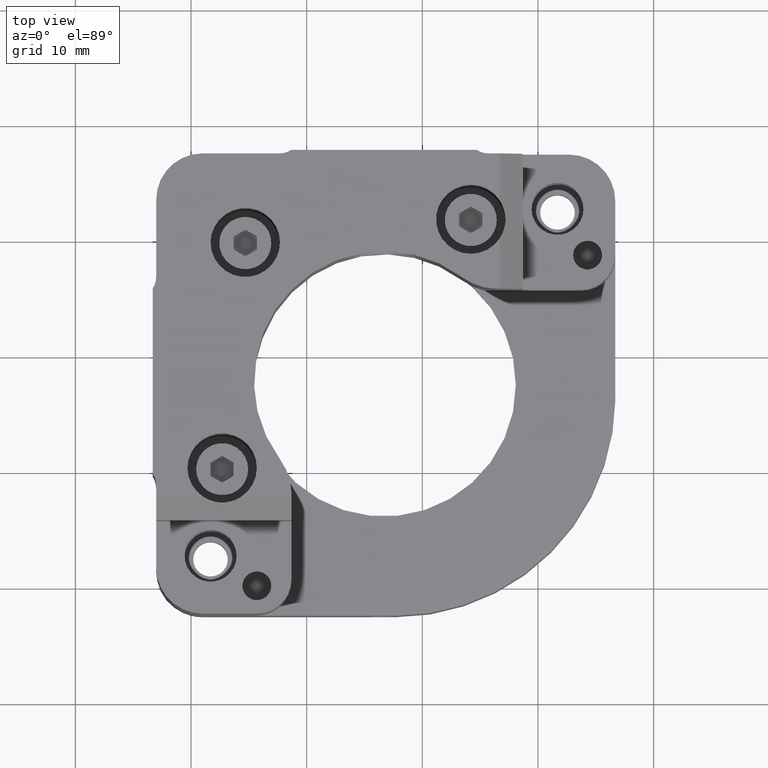
[diagram: clean part render]
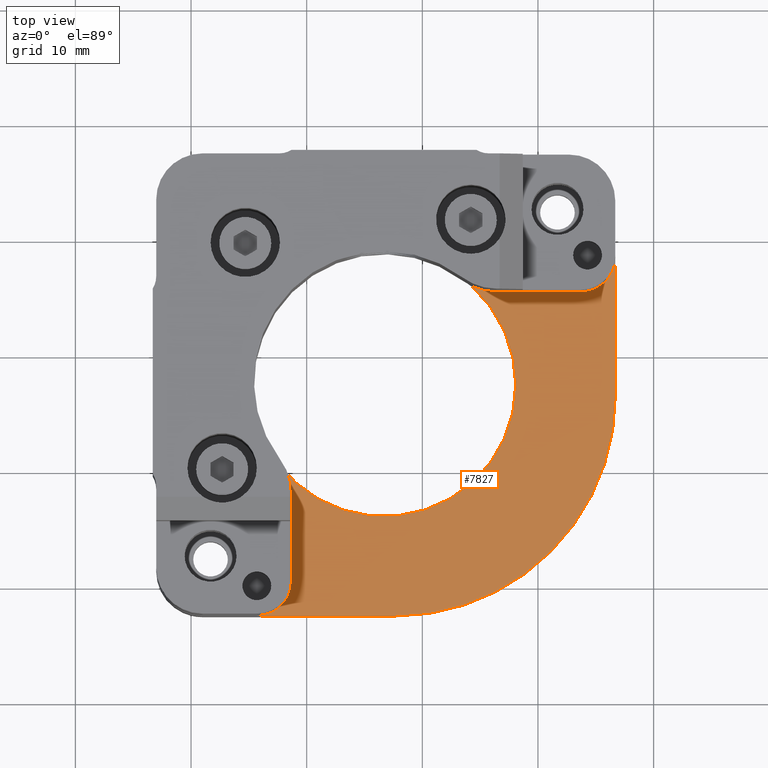
[diagram: same view with one face highlighted and labeled with its STEP entity id]
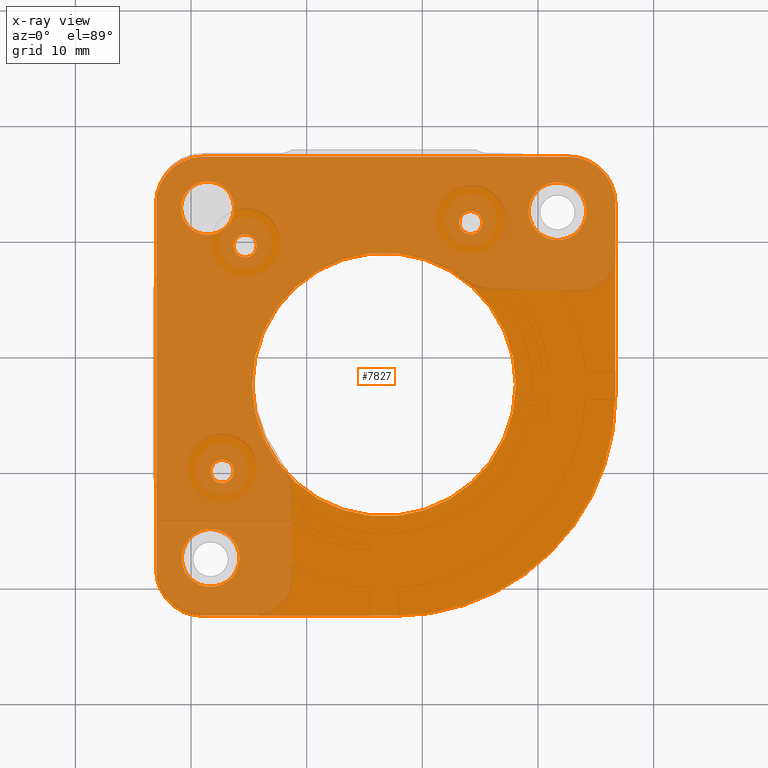
[diagram: x-ray of the same camera — body ghosted, the highlighted face saturated]
A machine part, top view. The second image highlights one B-rep face of the part: STEP entity #7827.
The next image is the same camera in x-ray: the body ghosted, the highlighted face saturated — about 59% of this face is hidden behind the body in this view.
In plain terms, the highlighted planar face has unit normal (0, 0, -1).
Its self-contained STEP definition (entity closure, byte-faithful):
#1 = DIRECTION ( 'NONE',  ( -0.000000000000000000, -1.000000000000000000, -0.000000000000000000 ) ) ;
#38 = CARTESIAN_POINT ( 'NONE',  ( -19.01367805534648170, -18.51830461373927861, 35.25006403882015604 ) ) ;
#65 = ORIENTED_EDGE ( 'NONE', *, *, #3721, .F. ) ;
#165 = CARTESIAN_POINT ( 'NONE',  ( -19.01367805534648170, 13.18169538626072068, 35.25006403882015604 ) ) ;
#171 = CARTESIAN_POINT ( 'NONE',  ( -3.313678055346389595, -2.518304613739277276, 35.25006403882015604 ) ) ;
#197 = CIRCLE ( 'NONE', #1766, 1.000000000000000000 ) ;
#249 = DIRECTION ( 'NONE',  ( -0.000000000000000000, -0.000000000000000000, -1.000000000000000000 ) ) ;
#341 = CARTESIAN_POINT ( 'NONE',  ( -18.57789158827018383, 12.74590891918432334, 35.25006403880151851 ) ) ;
#360 = DIRECTION ( 'NONE',  ( 0.000000000000000000, 0.000000000000000000, -1.000000000000000000 ) ) ;
#404 = CIRCLE ( 'NONE', #3532, 1.000000000000000888 ) ;
#474 = CIRCLE ( 'NONE', #1518, 4.000000000000000000 ) ;
#477 = VERTEX_POINT ( 'NONE', #5460 ) ;
#495 = CARTESIAN_POINT ( 'NONE',  ( -14.31367799644748651, 9.481695327361622461, 35.25006403882015604 ) ) ;
#532 = DIRECTION ( 'NONE',  ( 1.000000000000000000, 0.000000000000000000, 0.000000000000000000 ) ) ;
#573 = LINE ( 'NONE', #3058, #4356 ) ;
#708 = CIRCLE ( 'NONE', #6971, 0.9999999999999991118 ) ;
#709 = CARTESIAN_POINT ( 'NONE',  ( -19.01367805534648170, -22.51830461373927861, 35.25006403882015604 ) ) ;
#717 = AXIS2_PLACEMENT_3D ( 'NONE', #171, #3962, #5054 ) ;
#777 = AXIS2_PLACEMENT_3D ( 'NONE', #4754, #7249, #4347 ) ;
#862 = ORIENTED_EDGE ( 'NONE', *, *, #2768, .F. ) ;
#988 = EDGE_CURVE ( 'NONE', #477, #477, #197, .T. ) ;
#1004 = VERTEX_POINT ( 'NONE', #495 ) ;
#1094 = DIRECTION ( 'NONE',  ( 0.000000000000000000, 0.000000000000000000, 1.000000000000000000 ) ) ;
#1141 = CIRCLE ( 'NONE', #5710, 4.000000000000000000 ) ;
#1227 = CARTESIAN_POINT ( 'NONE',  ( -15.31367799644748651, 9.481695327361622461, 35.25006403882015604 ) ) ;
#1272 = LINE ( 'NONE', #7397, #4088 ) ;
#1343 = DIRECTION ( 'NONE',  ( 1.000000000000000000, 0.000000000000000000, 0.000000000000000000 ) ) ;
#1420 = DIRECTION ( 'NONE',  ( 1.000000000000000000, 0.000000000000000000, 0.000000000000000000 ) ) ;
#1467 = ORIENTED_EDGE ( 'NONE', *, *, #988, .F. ) ;
#1518 = AXIS2_PLACEMENT_3D ( 'NONE', #165, #5652, #5086 ) ;
#1547 = FACE_BOUND ( 'NONE', #5972, .T. ) ;
#1736 = VERTEX_POINT ( 'NONE', #7348 ) ;
#1744 = AXIS2_PLACEMENT_3D ( 'NONE', #7678, #5834, #1343 ) ;
#1766 = AXIS2_PLACEMENT_3D ( 'NONE', #4576, #5028, #1420 ) ;
#1823 = EDGE_CURVE ( 'NONE', #2560, #2560, #404, .T. ) ;
#1830 = ORIENTED_EDGE ( 'NONE', *, *, #7162, .F. ) ;
#1880 = DIRECTION ( 'NONE',  ( 0.000000000000000000, 0.000000000000000000, 1.000000000000000000 ) ) ;
#1894 = CIRCLE ( 'NONE', #717, 11.40000000000000036 ) ;
#1986 = CARTESIAN_POINT ( 'NONE',  ( -23.01367805534648880, 13.18169538626072068, 35.25006403882015604 ) ) ;
#1989 = VERTEX_POINT ( 'NONE', #5666 ) ;
#2095 = VERTEX_POINT ( 'NONE', #7136 ) ;
#2126 = CIRCLE ( 'NONE', #1744, 2.499999999999998668 ) ;
#2133 = CARTESIAN_POINT ( 'NONE',  ( 14.18632200355251527, 12.48169532736162246, 35.25006403882015604 ) ) ;
#2140 = ORIENTED_EDGE ( 'NONE', *, *, #6218, .F. ) ;
#2190 = FACE_BOUND ( 'NONE', #6324, .T. ) ;
#2216 = CARTESIAN_POINT ( 'NONE',  ( 12.68632194465361529, 17.18169538626077397, 35.25006403882015604 ) ) ;
#2229 = DIRECTION ( 'NONE',  ( -1.000000000000000000, 0.000000000000000000, -0.000000000000000000 ) ) ;
#2268 = ORIENTED_EDGE ( 'NONE', *, *, #5549, .F. ) ;
#2311 = ORIENTED_EDGE ( 'NONE', *, *, #6592, .F. ) ;
#2401 = CIRCLE ( 'NONE', #4366, 19.00000000000000000 ) ;
#2432 = EDGE_LOOP ( 'NONE', ( #2311 ) ) ;
#2443 = AXIS2_PLACEMENT_3D ( 'NONE', #5529, #3741, #6760 ) ;
#2514 = VERTEX_POINT ( 'NONE', #7042 ) ;
#2560 = VERTEX_POINT ( 'NONE', #4485 ) ;
#2642 = PLANE ( 'NONE',  #5289 ) ;
#2757 = FACE_BOUND ( 'NONE', #4929, .T. ) ;
#2767 = DIRECTION ( 'NONE',  ( 1.000000000000000000, 0.000000000000000000, 0.000000000000000000 ) ) ;
#2768 = EDGE_CURVE ( 'NONE', #6235, #3158, #4415, .T. ) ;
#2777 = CARTESIAN_POINT ( 'NONE',  ( 16.68632194465361707, 13.18169538626072068, 35.25006403882015604 ) ) ;
#2782 = CARTESIAN_POINT ( 'NONE',  ( -23.01367805534648880, -3.518304613739277276, 35.25006403882015604 ) ) ;
#3058 = CARTESIAN_POINT ( 'NONE',  ( -2.313678055346389151, 17.18169538626082371, 35.25006403882015604 ) ) ;
#3067 = VERTEX_POINT ( 'NONE', #5568 ) ;
#3158 = VERTEX_POINT ( 'NONE', #2777 ) ;
#3255 = DIRECTION ( 'NONE',  ( -0.000000000000000000, -0.000000000000000000, -1.000000000000000000 ) ) ;
#3258 = EDGE_CURVE ( 'NONE', #1989, #1989, #3460, .T. ) ;
#3369 = ORIENTED_EDGE ( 'NONE', *, *, #5621, .F. ) ;
#3422 = CARTESIAN_POINT ( 'NONE',  ( -2.313678055346389151, -22.51830461373927861, 35.25006403882015604 ) ) ;
#3460 = CIRCLE ( 'NONE', #6460, 2.299999999940617101 ) ;
#3509 = VERTEX_POINT ( 'NONE', #709 ) ;
#3511 = CIRCLE ( 'NONE', #777, 2.500000000000000444 ) ;
#3532 = AXIS2_PLACEMENT_3D ( 'NONE', #6166, #1094, #4234 ) ;
#3557 = DIRECTION ( 'NONE',  ( -0.000000000000000000, 0.000000000000000000, 1.000000000000000000 ) ) ;
#3601 = ORIENTED_EDGE ( 'NONE', *, *, #4969, .F. ) ;
#3675 = EDGE_LOOP ( 'NONE', ( #3978 ) ) ;
#3683 = VERTEX_POINT ( 'NONE', #4469 ) ;
#3718 = VECTOR ( 'NONE', #6444, 1000.000000000000000 ) ;
#3721 = EDGE_CURVE ( 'NONE', #1736, #3731, #2401, .T. ) ;
#3731 = VERTEX_POINT ( 'NONE', #4125 ) ;
#3741 = DIRECTION ( 'NONE',  ( -0.000000000000000000, -0.000000000000000000, -1.000000000000000000 ) ) ;
#3794 = ORIENTED_EDGE ( 'NONE', *, *, #7632, .F. ) ;
#3962 = DIRECTION ( 'NONE',  ( 0.000000000000000000, 0.000000000000000000, 1.000000000000000000 ) ) ;
#3978 = ORIENTED_EDGE ( 'NONE', *, *, #5749, .F. ) ;
#4051 = EDGE_CURVE ( 'NONE', #3731, #3509, #5380, .T. ) ;
#4088 = VECTOR ( 'NONE', #1, 1000.000000000000000 ) ;
#4091 = DIRECTION ( 'NONE',  ( 1.000000000000000000, 0.000000000000000000, 0.000000000000000000 ) ) ;
#4125 = CARTESIAN_POINT ( 'NONE',  ( -2.313678055346387819, -22.51830461373927861, 35.25006403882015604 ) ) ;
#4128 = EDGE_LOOP ( 'NONE', ( #862, #3369, #1830, #2140, #3794, #7394, #65, #2268 ) ) ;
#4147 = EDGE_LOOP ( 'NONE', ( #7867 ) ) ;
#4181 = LINE ( 'NONE', #2782, #7875 ) ;
#4234 = DIRECTION ( 'NONE',  ( 1.000000000000000000, 0.000000000000000000, 0.000000000000000000 ) ) ;
#4290 = DIRECTION ( 'NONE',  ( 1.000000000000000000, -0.000000000000000000, 0.000000000000000000 ) ) ;
#4347 = DIRECTION ( 'NONE',  ( 1.000000000000000000, 0.000000000000000000, 0.000000000000000000 ) ) ;
#4356 = VECTOR ( 'NONE', #4290, 1000.000000000000000 ) ;
#4366 = AXIS2_PLACEMENT_3D ( 'NONE', #7883, #249, #2767 ) ;
#4415 = CIRCLE ( 'NONE', #2443, 4.000000000000001776 ) ;
#4469 = CARTESIAN_POINT ( 'NONE',  ( 8.086321944653610316, -2.518304613739277276, 35.25006403882015604 ) ) ;
#4485 = CARTESIAN_POINT ( 'NONE',  ( -16.31367799644748473, -10.01830467263837754, 35.25006403882015604 ) ) ;
#4576 = CARTESIAN_POINT ( 'NONE',  ( 4.186322003552704452, 11.48169532736162246, 35.25006403882015604 ) ) ;
#4590 = VERTEX_POINT ( 'NONE', #1986 ) ;
#4653 = FACE_BOUND ( 'NONE', #4147, .T. ) ;
#4696 = FACE_BOUND ( 'NONE', #3675, .T. ) ;
#4754 = CARTESIAN_POINT ( 'NONE',  ( 11.68632200355251527, 12.48169532736162246, 35.25006403882015604 ) ) ;
#4929 = EDGE_LOOP ( 'NONE', ( #1467 ) ) ;
#4950 = DIRECTION ( 'NONE',  ( 1.000000000000000000, 0.000000000000000000, 0.000000000000000000 ) ) ;
#4969 = EDGE_CURVE ( 'NONE', #8018, #8018, #3511, .T. ) ;
#5028 = DIRECTION ( 'NONE',  ( 0.000000000000000000, 0.000000000000000000, 1.000000000000000000 ) ) ;
#5054 = DIRECTION ( 'NONE',  ( 1.000000000000000000, 0.000000000000000000, 0.000000000000000000 ) ) ;
#5086 = DIRECTION ( 'NONE',  ( 1.000000000000000000, 0.000000000000000000, 0.000000000000000000 ) ) ;
#5289 = AXIS2_PLACEMENT_3D ( 'NONE', #7834, #360, #2229 ) ;
#5380 = LINE ( 'NONE', #3422, #3718 ) ;
#5460 = CARTESIAN_POINT ( 'NONE',  ( 5.186322003552704452, 11.48169532736162246, 35.25006403882015604 ) ) ;
#5508 = EDGE_CURVE ( 'NONE', #1004, #1004, #708, .T. ) ;
#5529 = CARTESIAN_POINT ( 'NONE',  ( 12.68632194465361529, 13.18169538626072068, 35.25006403882015604 ) ) ;
#5549 = EDGE_CURVE ( 'NONE', #3158, #1736, #1272, .T. ) ;
#5568 = CARTESIAN_POINT ( 'NONE',  ( -15.81367799644748828, -17.51830467263837576, 35.25006403882015604 ) ) ;
#5621 = EDGE_CURVE ( 'NONE', #2514, #6235, #573, .T. ) ;
#5651 = ORIENTED_EDGE ( 'NONE', *, *, #5508, .F. ) ;
#5652 = DIRECTION ( 'NONE',  ( -0.000000000000000000, -0.000000000000000000, -1.000000000000000000 ) ) ;
#5666 = CARTESIAN_POINT ( 'NONE',  ( -16.27789158832956673, 12.74590891918432334, 35.25006403880151851 ) ) ;
#5710 = AXIS2_PLACEMENT_3D ( 'NONE', #38, #3255, #4950 ) ;
#5749 = EDGE_CURVE ( 'NONE', #3067, #3067, #2126, .T. ) ;
#5834 = DIRECTION ( 'NONE',  ( 0.000000000000000000, 0.000000000000000000, 1.000000000000000000 ) ) ;
#5939 = EDGE_LOOP ( 'NONE', ( #6922 ) ) ;
#5972 = EDGE_LOOP ( 'NONE', ( #3601 ) ) ;
#6166 = CARTESIAN_POINT ( 'NONE',  ( -17.31367799644748828, -10.01830467263837754, 35.25006403882015604 ) ) ;
#6218 = EDGE_CURVE ( 'NONE', #2095, #4590, #4181, .T. ) ;
#6235 = VERTEX_POINT ( 'NONE', #2216 ) ;
#6324 = EDGE_LOOP ( 'NONE', ( #5651 ) ) ;
#6444 = DIRECTION ( 'NONE',  ( -1.000000000000000000, 0.000000000000000000, -0.000000000000000000 ) ) ;
#6460 = AXIS2_PLACEMENT_3D ( 'NONE', #341, #3557, #4091 ) ;
#6592 = EDGE_CURVE ( 'NONE', #3683, #3683, #1894, .T. ) ;
#6760 = DIRECTION ( 'NONE',  ( 1.000000000000000000, 0.000000000000000000, 0.000000000000000000 ) ) ;
#6922 = ORIENTED_EDGE ( 'NONE', *, *, #3258, .F. ) ;
#6971 = AXIS2_PLACEMENT_3D ( 'NONE', #1227, #1880, #532 ) ;
#7042 = CARTESIAN_POINT ( 'NONE',  ( -19.01367805534648170, 17.18169538626082371, 35.25006403882015604 ) ) ;
#7136 = CARTESIAN_POINT ( 'NONE',  ( -23.01367805534648880, -18.51830461373927861, 35.25006403882015604 ) ) ;
#7145 = FACE_OUTER_BOUND ( 'NONE', #4128, .T. ) ;
#7162 = EDGE_CURVE ( 'NONE', #4590, #2514, #474, .T. ) ;
#7184 = FACE_BOUND ( 'NONE', #5939, .T. ) ;
#7209 = DIRECTION ( 'NONE',  ( 0.000000000000000000, 1.000000000000000000, 0.000000000000000000 ) ) ;
#7249 = DIRECTION ( 'NONE',  ( 0.000000000000000000, 0.000000000000000000, 1.000000000000000000 ) ) ;
#7348 = CARTESIAN_POINT ( 'NONE',  ( 16.68632194465361707, -3.518304613739277720, 35.25006403882015604 ) ) ;
#7394 = ORIENTED_EDGE ( 'NONE', *, *, #4051, .F. ) ;
#7397 = CARTESIAN_POINT ( 'NONE',  ( 16.68632194465361707, -3.518304613739277276, 35.25006403882015604 ) ) ;
#7632 = EDGE_CURVE ( 'NONE', #3509, #2095, #1141, .T. ) ;
#7678 = CARTESIAN_POINT ( 'NONE',  ( -18.31367799644748828, -17.51830467263837576, 35.25006403882015604 ) ) ;
#7751 = FACE_BOUND ( 'NONE', #2432, .T. ) ;
#7827 = ADVANCED_FACE ( 'NONE', ( #2757, #7751, #2190, #4653, #7145, #1547, #4696, #7184 ), #2642, .F. ) ;
#7834 = CARTESIAN_POINT ( 'NONE',  ( -2.313678055346389151, -3.518304613739277276, 35.25006403882015604 ) ) ;
#7867 = ORIENTED_EDGE ( 'NONE', *, *, #1823, .F. ) ;
#7875 = VECTOR ( 'NONE', #7209, 1000.000000000000000 ) ;
#7883 = CARTESIAN_POINT ( 'NONE',  ( -2.313678055346389151, -3.518304613739277276, 35.25006403882015604 ) ) ;
#8018 = VERTEX_POINT ( 'NONE', #2133 ) ;